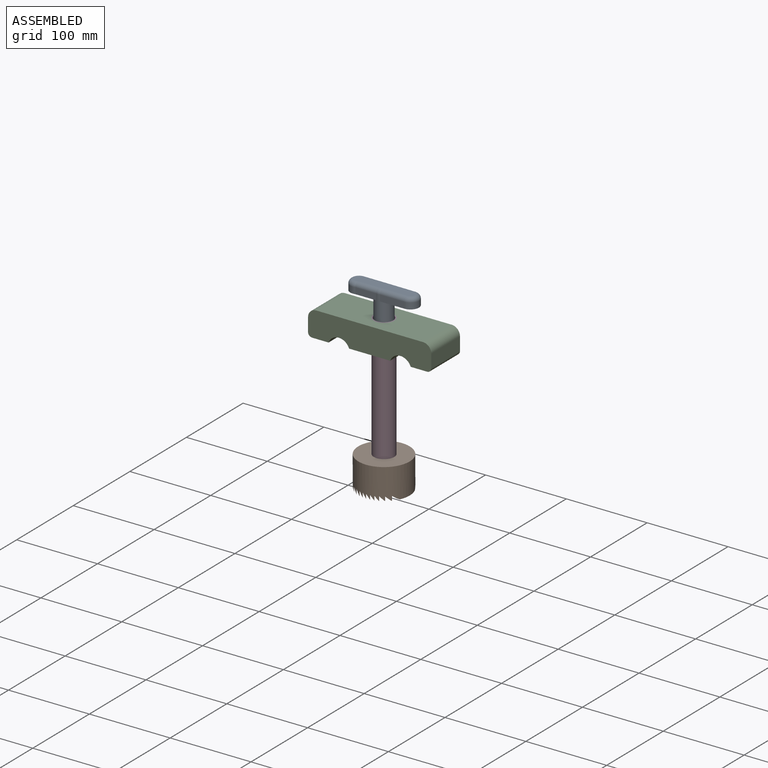
[diagram: assembled view]
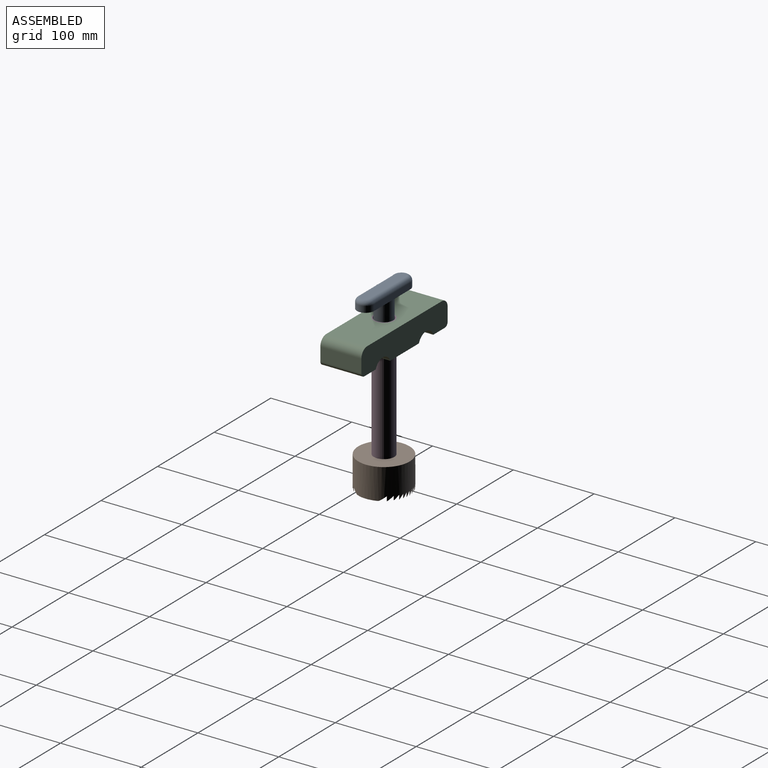
[diagram: assembled view, second angle]
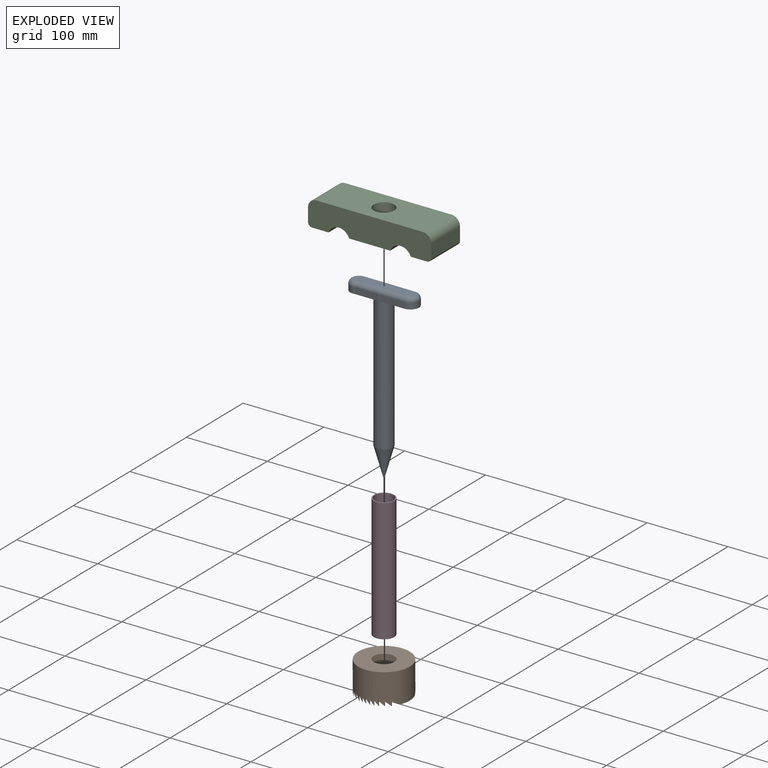
[diagram: exploded view]
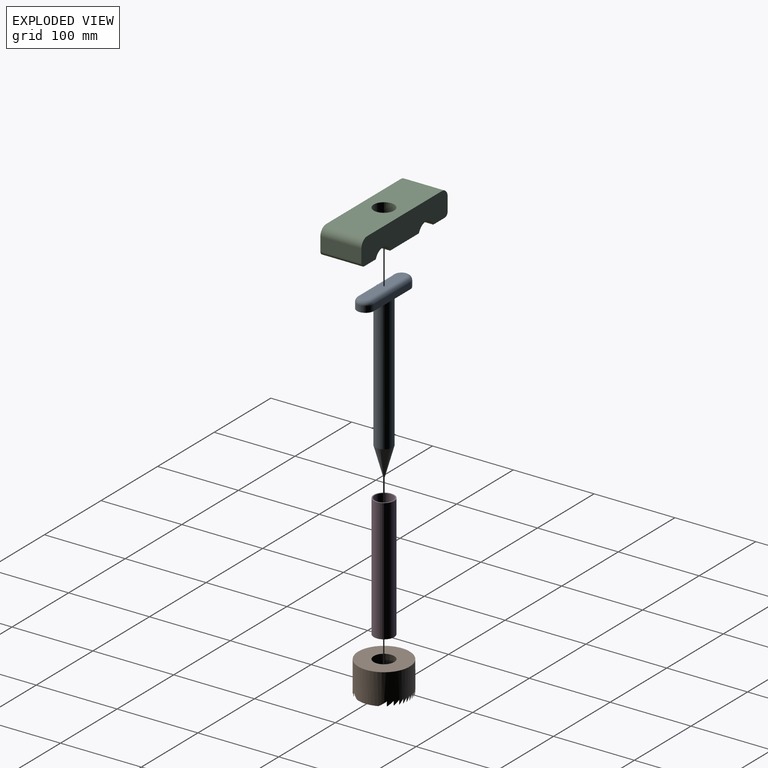
[diagram: exploded view, second angle]
ASSEMBLY  parts=4 mates=3
PART A: 21 faces, bbox 23.6x86.7x216.6 mm
  f0: cylinder r=10.79mm len=172.72mm, axis (0,0,1), area 11233.3mm2, adj f1,f2,f3,f8,f14,f17
  f1: plane 30.64x7.62mm, normal (1,0,0), area 233.4mm2, adj f0,f3,f7,f16
  f2: plane 25.75x7.62mm, normal (1,0,0), area 196.2mm2, adj f0,f4,f8,f12
  f3: plane 43.17x21.35mm, normal (0,0,-1), area 686.3mm2, adj f0,f1,f6,f7
  f4: cylinder r=10.91mm len=21.82mm, axis (0,0,1), area 294.4mm2, adj f2,f5,f8,f10
  f5: plane 29.24x7.62mm, normal (-1,0,0), area 222.8mm2, adj f4,f6,f8,f11
  f6: plane 32.92x7.62mm, normal (-1,0.01,0), area 250.8mm2, adj f3,f5,f7,f8,f13
  f7: cylinder r=10.55mm len=21.1mm, axis (0,0,1), area 249.3mm2, adj f1,f3,f6,f15
  f8: plane 41.79x21.82mm, normal (0,0,-1), area 662.5mm2, adj f0,f2,f4,f5,f6
  f9: plane 74.8x11.66mm, normal (0,0,1), area 807.8mm2, adj f10,f11,f12,f13,f14,f15,f16
  f10: torus R=5.83mm, axis (0,0,-1), area 258.8mm2, adj f4,f9,f11,f12
  f11: cylinder r=5.08mm len=29.66mm, axis (0,1,0), area 234.4mm2, adj f5,f9,f10,f13
  f12: cylinder r=5.08mm len=27.14mm, axis (0,-1,0), area 209.3mm2, adj f2,f9,f10,f14
  f13: cylinder r=5.08mm len=32.96mm, axis (0.01,1,0), area 262.5mm2, adj f6,f9,f11,f15
  f14: torus R=5.71mm, axis (0,0,-1), area 33.3mm2, adj f0,f9,f12,f16
  f15: torus R=5.47mm, axis (0,0,-1), area 215mm2, adj f7,f9,f13,f16
  f16: cylinder r=5.08mm len=31.27mm, axis (0,-1,0), area 245.9mm2, adj f1,f9,f14,f15
  f17: cone r=10.8mm half-angle=89.8deg, axis (0,0,1), area 0.1mm2, adj f0,f18
  f18: cone r=0mm half-angle=15.5deg, axis (0,0,1), area 1366mm2, adj f17
  f19: plane 21.38x21.38mm, normal (0,0,-1), area 359.1mm2, adj f20
  f20: cone r=10.8mm half-angle=89.8deg, axis (0,0,1), area 359.1mm2, adj f19
PART B: 57 faces, bbox 63.5x63.5x38.1 mm
  f0: cylinder r=31.75mm len=63.5mm, axis (0,0,-1), area 7052.2mm2, adj f1,f2,f4,f5,f6,f7,f8,f9
  f1: plane 26.64x2.93mm, normal (0,0,-1), area 6.8mm2, adj f0,f3,f53,f56
  f2: plane 0.62x0.2mm, normal (0,0,-1), area 0.1mm2, adj f0,f3,f50,f54
  f3: cylinder r=31.5mm len=62.99mm, axis (0,0,-1), area 6924.5mm2, adj f1,f2,f4,f5,f6,f7,f8,f9
  f4: plane 0.62x0.2mm, normal (0,0,-1), area 0.1mm2, adj f0,f3,f51,f55
  f5: plane 5.33x5.2mm, normal (-0.72,0,-0.7), area 2.2mm2, adj f0,f3,f47,f52
  f6: plane 5.33x5.2mm, normal (-0.72,0,-0.7), area 2.2mm2, adj f0,f3,f48,f49
  f7: plane 0.31x0.06mm, normal (0,0,-1), area 0mm2, adj f0,f3,f44,f47
  f8: plane 0.31x0.06mm, normal (0,0,-1), area 0mm2, adj f0,f3,f45,f48
  f9: plane 5.5x4.51mm, normal (-0.77,0,-0.63), area 1.9mm2, adj f0,f3,f41,f46
  f10: plane 5.5x4.51mm, normal (-0.77,0,-0.63), area 1.9mm2, adj f0,f3,f42,f43
  f11: plane 6.25x4.61mm, normal (-0.8,0,-0.59), area 2mm2, adj f0,f3,f31,f36
  f12: plane 6.25x4.61mm, normal (-0.8,0,-0.59), area 2mm2, adj f0,f3,f32,f33
  f13: plane 6.16x5.07mm, normal (-0.77,0,-0.64), area 2.2mm2, adj f0,f3,f29,f32
  f14: plane 6.16x5.07mm, normal (-0.77,0,-0.64), area 2.2mm2, adj f0,f3,f30,f31
  f15: plane 6.11x5.84mm, normal (-0.74,0,-0.67), area 3mm2, adj f0,f3,f23,f28
  f16: plane 6.11x5.84mm, normal (-0.74,0,-0.67), area 3mm2, adj f0,f3,f24,f25
  f17: plane 39.38x6.93mm, normal (-0.71,0,-0.7), area 15mm2, adj f0,f3,f22,f23,f24
  f18: plane 63.5x63.5mm, normal (0,0,1), area 2660.2mm2, adj f0,f21
  f19: plane 3.79x0.06mm, normal (0,0,-1), area 0.1mm2, adj f0,f22
  f20: plane 62.99x62.99mm, normal (0,0,-1), area 2609.7mm2, adj f3,f21
  f21: cylinder r=12.7mm len=25.4mm, axis (0,0,1), area 20.3mm2, adj f18,f20
  f22: plane 6.97x3.79mm, normal (1,0,0), area 26.4mm2, adj f0,f17,f19
  f23: plane 6.22x0.41mm, normal (1,0,0), area 2.6mm2, adj f0,f3,f15,f17
  f24: plane 6.22x0.41mm, normal (1,0,0), area 2.6mm2, adj f0,f3,f16,f17
  f25: plane 6.23x0.32mm, normal (1,0,0), area 2mm2, adj f0,f3,f16,f26
  f26: plane 6.37x5.36mm, normal (-0.77,0,-0.64), area 2.5mm2, adj f0,f3,f25,f29
  f27: plane 6.37x5.36mm, normal (-0.77,0,-0.64), area 2.5mm2, adj f0,f3,f28,f30
  f28: plane 6.23x0.32mm, normal (1,0,0), area 2mm2, adj f0,f3,f15,f27
  f29: plane 6.22x0.28mm, normal (1,0,0), area 1.8mm2, adj f0,f3,f13,f26
  f30: plane 6.22x0.28mm, normal (1,0,0), area 1.8mm2, adj f0,f3,f14,f27
  f31: plane 6.23x0.27mm, normal (1,0,0), area 1.7mm2, adj f0,f3,f11,f14
  f32: plane 6.23x0.27mm, normal (1,0,0), area 1.7mm2, adj f0,f3,f12,f13
  f33: plane 5.92x0.26mm, normal (1,0,0), area 1.5mm2, adj f0,f3,f12,f34
  f34: plane 5.98x4.4mm, normal (-0.81,0,-0.59), area 1.9mm2, adj f0,f3,f33,f38
  f35: plane 5.98x4.4mm, normal (-0.81,0,-0.59), area 1.9mm2, adj f0,f3,f36,f40
  f36: plane 5.92x0.26mm, normal (1,0,0), area 1.5mm2, adj f0,f3,f11,f35
  f37: plane 5.71x4.71mm, normal (-0.77,0,-0.64), area 1.9mm2, adj f0,f3,f38,f41
  f38: plane 5.7x0.25mm, normal (1,0,0), area 1.4mm2, adj f0,f3,f34,f37
  f39: plane 5.71x4.71mm, normal (-0.77,0,-0.64), area 1.9mm2, adj f0,f3,f40,f42
  f40: plane 5.7x0.25mm, normal (1,0,0), area 1.4mm2, adj f0,f3,f35,f39
  f41: plane 5.5x0.26mm, normal (1,0,0), area 1.4mm2, adj f0,f3,f9,f37
  f42: plane 5.5x0.26mm, normal (1,0,0), area 1.4mm2, adj f0,f3,f10,f39
  f43: plane 5.56x0.27mm, normal (1,0,0), area 1.5mm2, adj f0,f3,f10,f44
  f44: plane 5.56x4.49mm, normal (-0.78,0,-0.63), area 1.9mm2, adj f0,f3,f7,f43
  f45: plane 5.56x4.49mm, normal (-0.78,0,-0.63), area 1.9mm2, adj f0,f3,f8,f46
  f46: plane 5.56x0.27mm, normal (1,0,0), area 1.5mm2, adj f0,f3,f9,f45
  f47: plane 5.5x0.28mm, normal (1,0,0), area 1.6mm2, adj f0,f3,f5,f7
  f48: plane 5.5x0.28mm, normal (1,0,0), area 1.6mm2, adj f0,f3,f6,f8
  f49: plane 5.22x0.32mm, normal (1,0,0), area 1.7mm2, adj f0,f3,f6,f50
  f50: plane 5.4x4.98mm, normal (-0.74,0,-0.68), area 2.6mm2, adj f0,f2,f3,f49
  f51: plane 5.4x4.98mm, normal (-0.74,0,-0.68), area 2.6mm2, adj f0,f3,f4,f52
  f52: plane 5.22x0.32mm, normal (1,0,0), area 1.7mm2, adj f0,f3,f5,f51
  f53: plane 7.95x5.6mm, normal (-0.77,0,-0.64), area 3.5mm2, adj f0,f1,f3,f54
  f54: plane 5.6x0.39mm, normal (1,0,0), area 2.2mm2, adj f0,f2,f3,f53
  f55: plane 5.6x0.39mm, normal (1,0,0), area 2.2mm2, adj f0,f3,f4,f56
  f56: plane 7.95x5.6mm, normal (-0.77,0,-0.64), area 3.5mm2, adj f0,f1,f3,f55
PART C: 15 faces, bbox 152.4x50.8x31.8 mm
  f0: cylinder r=10.16mm len=50.8mm, axis (0,1,0), area 810.7mm2, adj f1,f11,f12,f13
  f1: plane 50.8x16.51mm, normal (-1,0,0), area 838.7mm2, adj f0,f2,f12,f13
  f2: cylinder r=5.08mm len=50.8mm, axis (0,1,0), area 405.4mm2, adj f1,f3,f12,f13
  f3: plane 50.8x20.32mm, normal (0,0,-1), area 1032.3mm2, adj f2,f4,f12,f13
  f4: cylinder r=13.57mm len=50.8mm, axis (0,1,0), area 1668.6mm2, adj f3,f5,f12,f13
  f5: plane 50.8x50.8mm, normal (0,0,-1), area 2073.9mm2, adj f4,f6,f12,f13,f14
  f6: cylinder r=13.57mm len=50.8mm, axis (0,1,0), area 1668.6mm2, adj f5,f7,f12,f13
  f7: plane 50.8x20.32mm, normal (0,0,-1), area 1032.3mm2, adj f6,f8,f12,f13
  f8: cylinder r=5.08mm len=50.8mm, axis (0,1,0), area 405.4mm2, adj f7,f9,f12,f13
  f9: plane 50.8x16.51mm, normal (1,0,0), area 838.7mm2, adj f8,f10,f12,f13
  f10: cylinder r=10.16mm len=50.8mm, axis (0,1,0), area 810.7mm2, adj f9,f11,f12,f13
  f11: plane 132.08x50.8mm, normal (0,0,1), area 6203mm2, adj f0,f10,f12,f13,f14
  f12: plane 152.4x31.75mm, normal (0,-1,0), area 4459.2mm2, adj f0,f1,f2,f3,f4,f5,f6,f7
  f13: plane 152.4x31.75mm, normal (0,1,0), area 4459.2mm2, adj f0,f1,f2,f3,f4,f5,f6,f7
  f14: cylinder r=12.7mm len=31.75mm, axis (0,0,1), area 2533.5mm2, adj f5,f11
PART D: 4 faces, bbox 25.4x25.4x152.4 mm
  f0: cylinder r=11.43mm len=152.4mm, axis (0,0,-1), area 10944.9mm2, adj f2,f3
  f1: cylinder r=12.7mm len=152.4mm, axis (0,0,-1), area 12161mm2, adj f2,f3
  f2: plane 25.4x25.4mm, normal (0,0,1), area 96.3mm2, adj f0,f1
  f3: plane 25.4x25.4mm, normal (0,0,-1), area 96.3mm2, adj f0,f1
PLACE A rot(axis=(0,0,-1),90deg) t=(121.06,83.88,151.54)mm
PLACE B t=(121.06,104.98,-48.97)mm
PLACE C t=(121.06,104.98,125.66)mm fixed
PLACE D t=(121.06,104.98,65.33)mm
MATE fastened C.f14 <-> D.f1  axis (0,0,1) through (121.06,104.98,141.53)mm
MATE slider A.f18 <-> D.f1  axis (0,0,1) through (121.06,104.98,-0.86)mm
MATE fastened B.f21 <-> D.f1  axis (0,0,1) through (121.06,104.98,-10.87)mm
